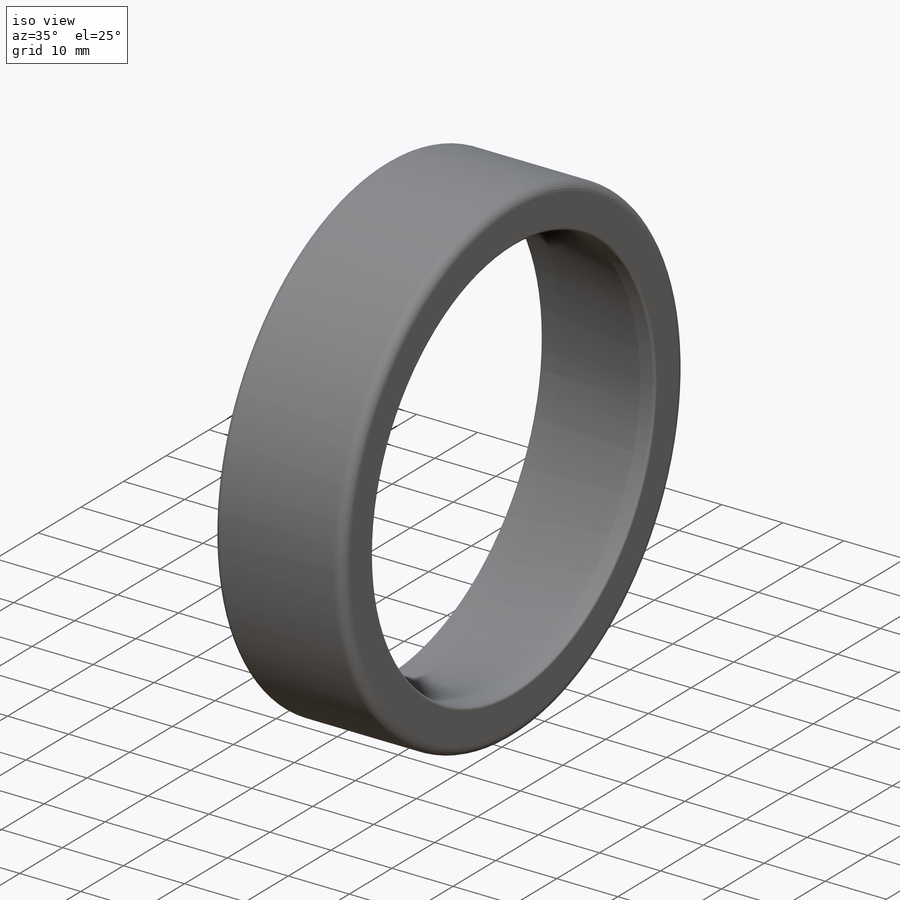
[diagram: iso view]
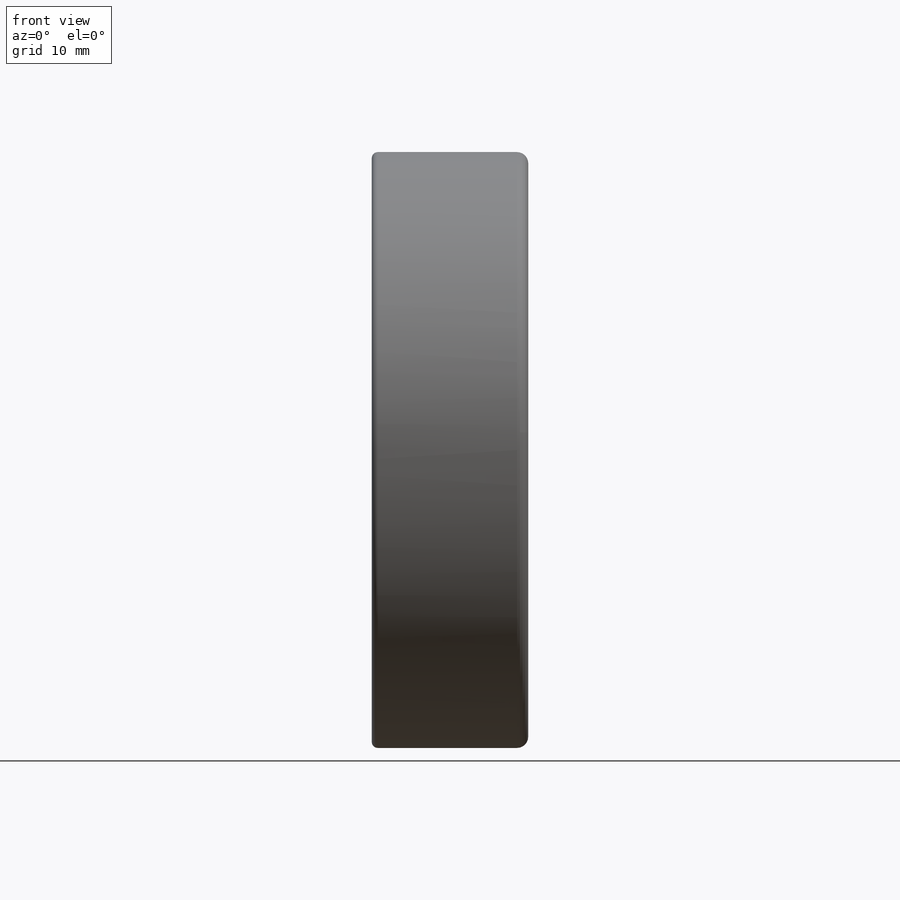
[diagram: front view]
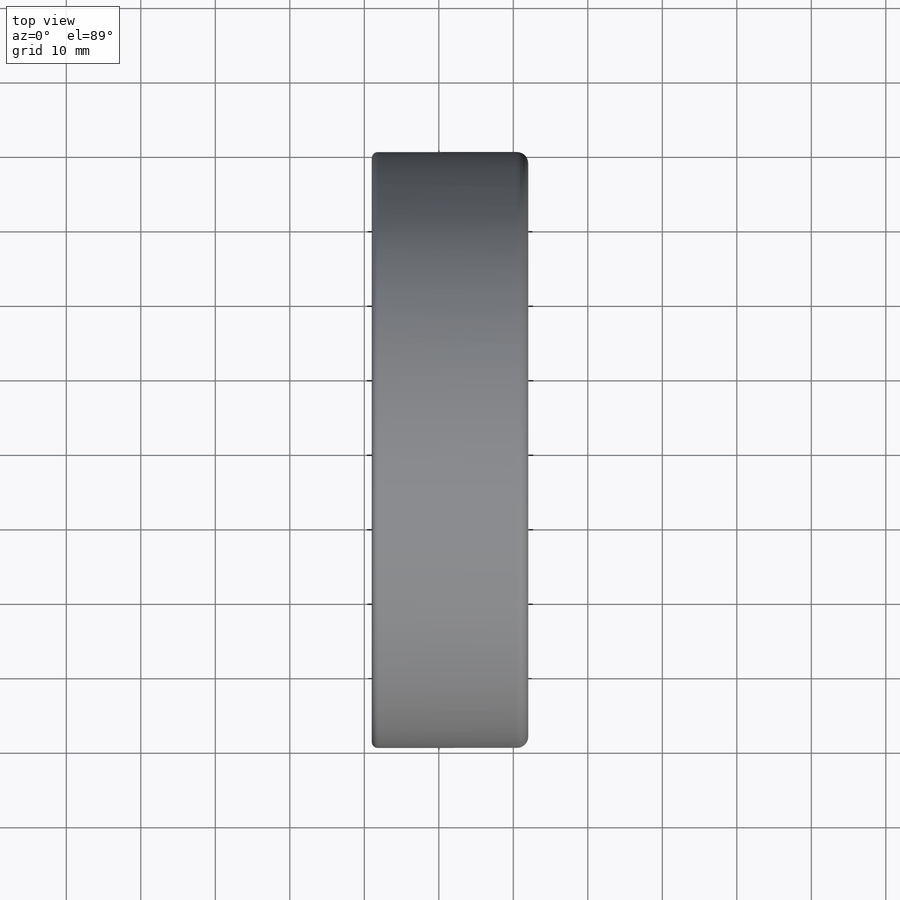
[diagram: top view]
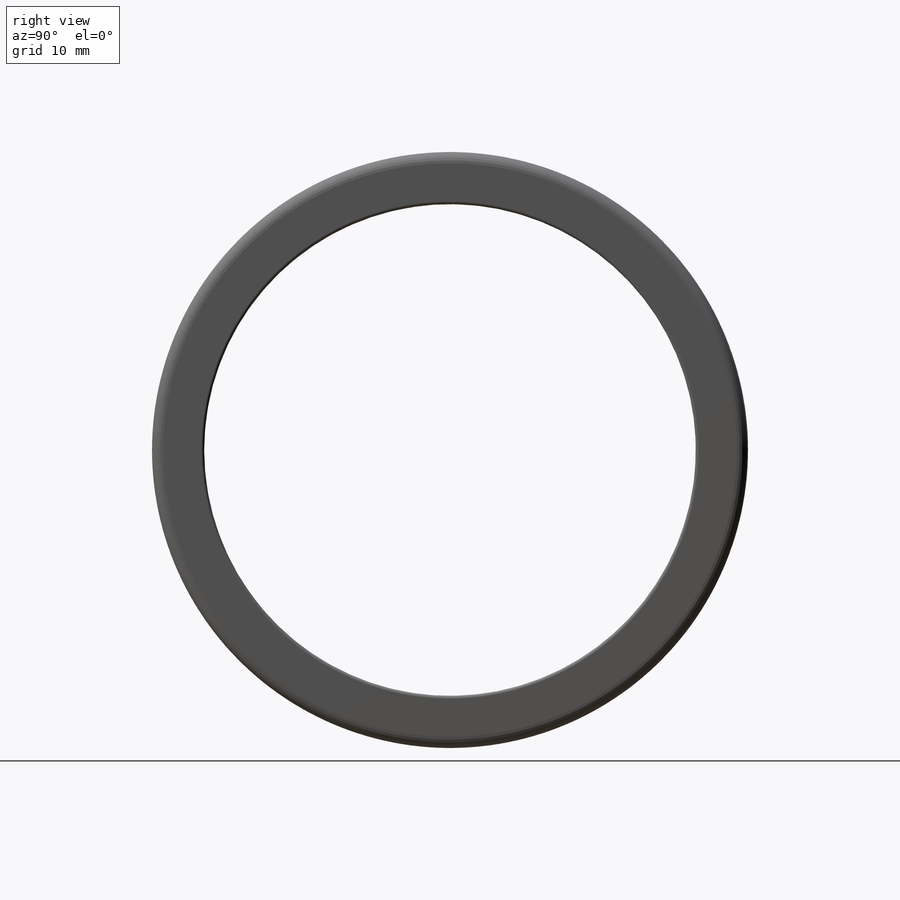
[diagram: right view]
SOLIDWORKS PART (.sldprt)
format: sldprt  version: not decoded by parser v0  size: 357,376 bytes
history: native  units: mm
features: fillet x3, material x1, sketch x1, revolve x1 (+11 scaffold rows collapsed)
feature tree (17):
  scaffold x11  (default folders/planes/origin — collapsed)
  material  "Materiał <nieokreślony>"
  sketch  "Sketch1"  dims[c1.D14=2.0mm c1.D15=3.6mm c1.D1=21.0mm c1.D2=27.5mm c1.D3=40.0mm c1.D4=1.0mm c1.D5=21.0mm c1.D6=21.0mm c2.D6=5.0deg c2.D7=18.0mm c3.D7=10.0deg c3.D8=~27.733971mm c4.D8=2.5deg c4.D9=15.0mm c4.D10=9.0mm c4.D7=1.8mm c4.D11=2.0mm c4.D12=1.6mm c4.D13=1.6mm c4.D16=0.6mm c4.D17=1.0mm c4.D18=3.4mm c4.D19=18.0mm c5.D19=5.0deg c5.D20=7.0mm c5.D21=~30.84691mm c5.D22=40.0mm]
  revolve  "Revolve1"  Angle=360deg
  fillet  "Fillet1"  Radius=1.5mm
  fillet  "Fillet2"  Radius=0.8mm
  fillet  "Fillet3"  Radius=0.4mm
decode coverage: 5 of 5 modeling features carry decoded parameters
note: ~ marks probable driven/reference dimensions
note: suppression state not decoded; provenance and decode notes live in map.json
